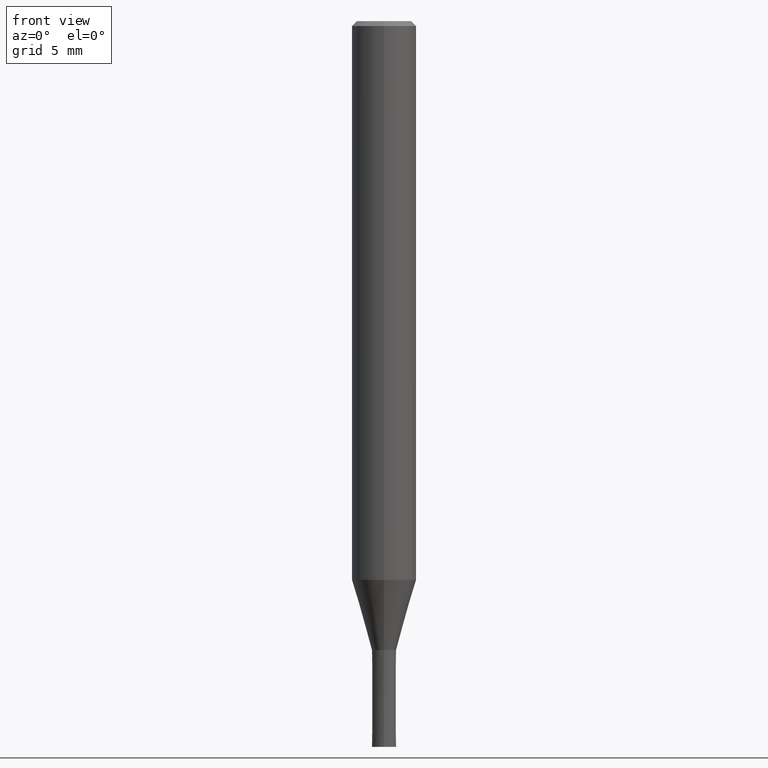
[diagram: clean part render]
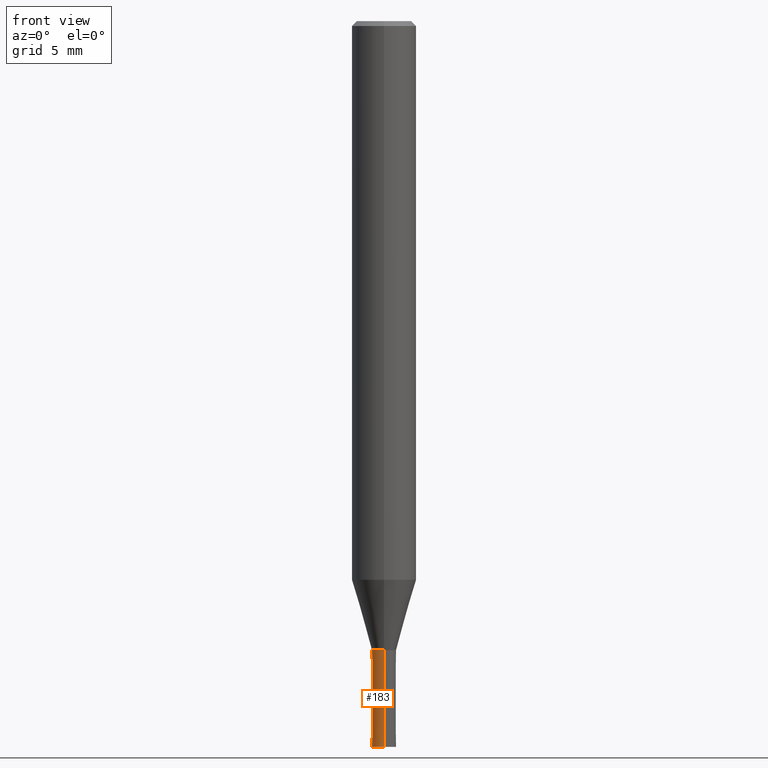
[diagram: same view with one face highlighted and labeled with its STEP entity id]
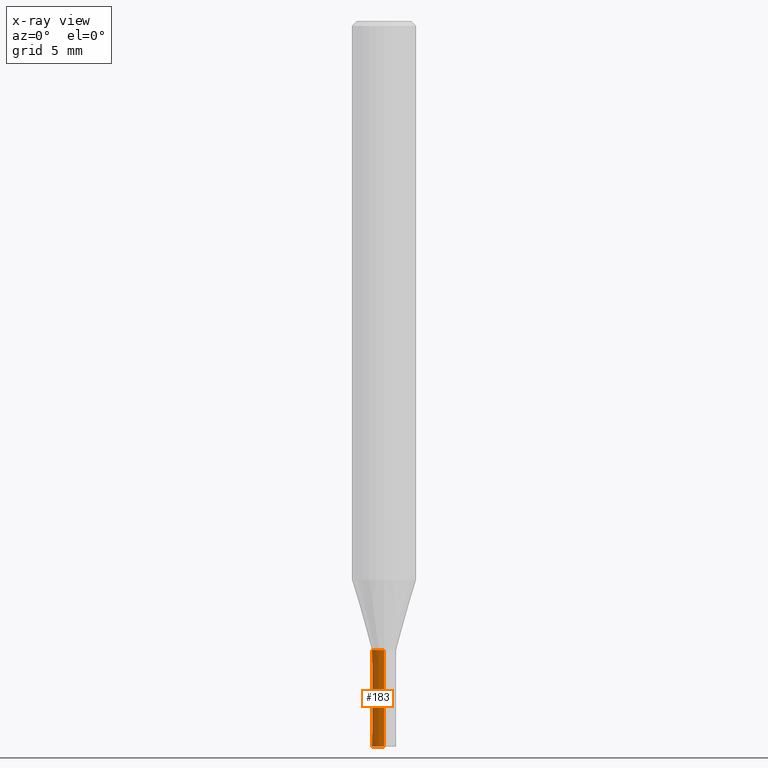
[diagram: x-ray of the same camera — body ghosted, the highlighted face saturated]
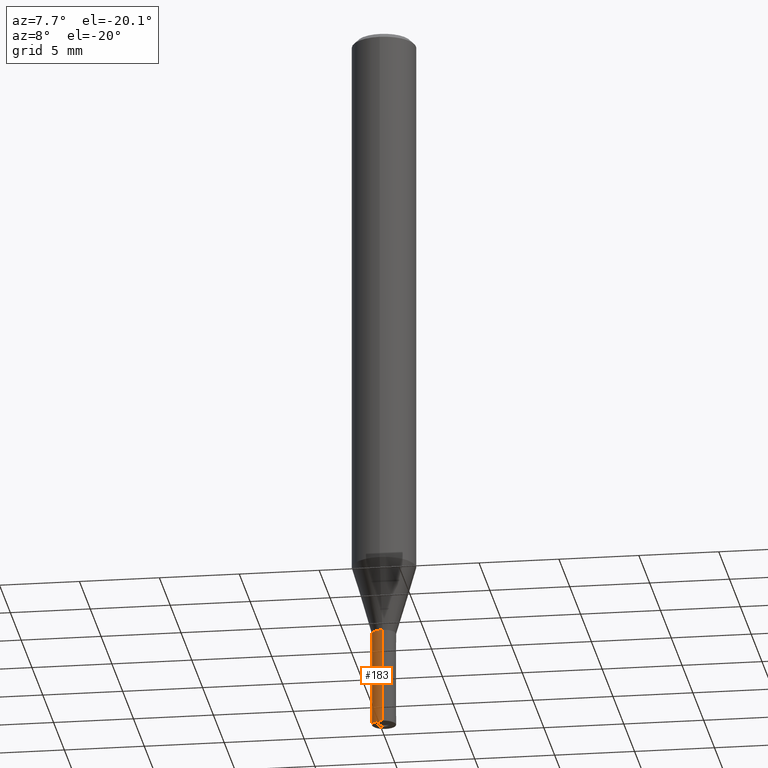
[diagram: same view with one face highlighted and labeled with its STEP entity id]
A machine part, front view. The second image highlights one B-rep face of the part: STEP entity #183.
The next image is the same camera in x-ray: the body ghosted, the highlighted face saturated — about 0% of this face is hidden behind the body in this view.
A second angle (auxiliary view) of the same face is appended — the face is thin or edge-on in the first view.
In plain terms, the highlighted conical surface has half-angle 0.001 deg.
Its self-contained STEP definition (entity closure, byte-faithful):
#115=VERTEX_POINT('',#287);
#119=VERTEX_POINT('',#291);
#139=EDGE_CURVE('',#115,#259,#313,.T.);
#149=EDGE_CURVE('',#235,#115,#325,.T.);
#183=ADVANCED_FACE('',(#363),#364,.T.);
#219=EDGE_CURVE('',#119,#235,#406,.T.);
#223=EDGE_CURVE('',#119,#259,#411,.T.);
#235=VERTEX_POINT('',#424);
#259=VERTEX_POINT('',#452);
#287=CARTESIAN_POINT('',(0.0,0.7499,-39.0));
#291=CARTESIAN_POINT('',(9.18454765366783E-017,-0.75,-45.0));
#313=LINE('',#510,#511);
#325=CIRCLE('',#525,0.7499);
#363=FACE_OUTER_BOUND('',#573,.T.);
#364=CONICAL_SURFACE('',#574,0.74995,1.66666666651216E-005);
#406=LINE('',#628,#629);
#411=CIRCLE('',#635,0.75);
#424=CARTESIAN_POINT('',(9.18332304731401E-017,-0.7499,-39.0));
#452=CARTESIAN_POINT('',(0.0,0.75,-45.0));
#510=CARTESIAN_POINT('',(-9.18393535049092E-017,0.74995,-42.0));
#511=VECTOR('',#722,1.0);
#525=AXIS2_PLACEMENT_3D('',#742,#743,#744);
#573=EDGE_LOOP('',(#790,#791,#792,#793));
#574=AXIS2_PLACEMENT_3D('',#794,#795,#796);
#628=CARTESIAN_POINT('',(9.18393535049092E-017,-0.74995,-42.0));
#629=VECTOR('',#855,1.0);
#635=AXIS2_PLACEMENT_3D('',#864,#865,#866);
#722=DIRECTION('',(-2.04101058942026E-021,1.666666666435E-005,-0.999999999861111));
#742=CARTESIAN_POINT('',(0.0,0.0,-39.0));
#743=DIRECTION('',(0.0,0.0,-1.0));
#744=DIRECTION('',(0.0,1.0,0.0));
#790=ORIENTED_EDGE('',*,*,#139,.T.);
#791=ORIENTED_EDGE('',*,*,#223,.F.);
#792=ORIENTED_EDGE('',*,*,#219,.T.);
#793=ORIENTED_EDGE('',*,*,#149,.T.);
#794=CARTESIAN_POINT('',(0.0,0.0,-42.0));
#795=DIRECTION('',(0.0,-0.0,-1.0));
#796=DIRECTION('',(0.0,1.0,0.0));
#855=DIRECTION('',(-2.04101058942026E-021,1.666666666435E-005,0.999999999861111));
#864=CARTESIAN_POINT('',(0.0,0.0,-45.0));
#865=DIRECTION('',(0.0,0.0,-1.0));
#866=DIRECTION('',(0.0,1.0,0.0));